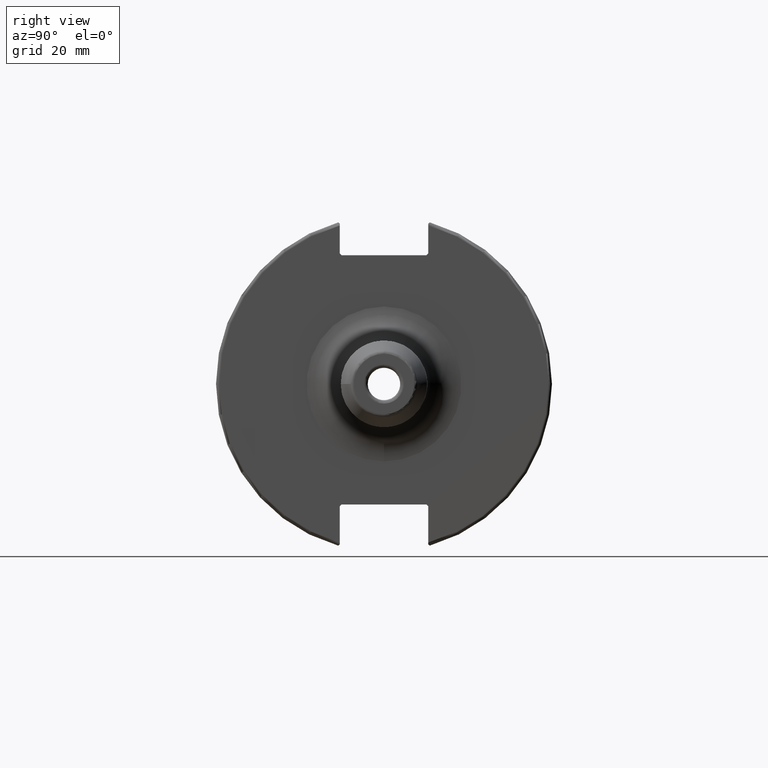
[diagram: clean part render]
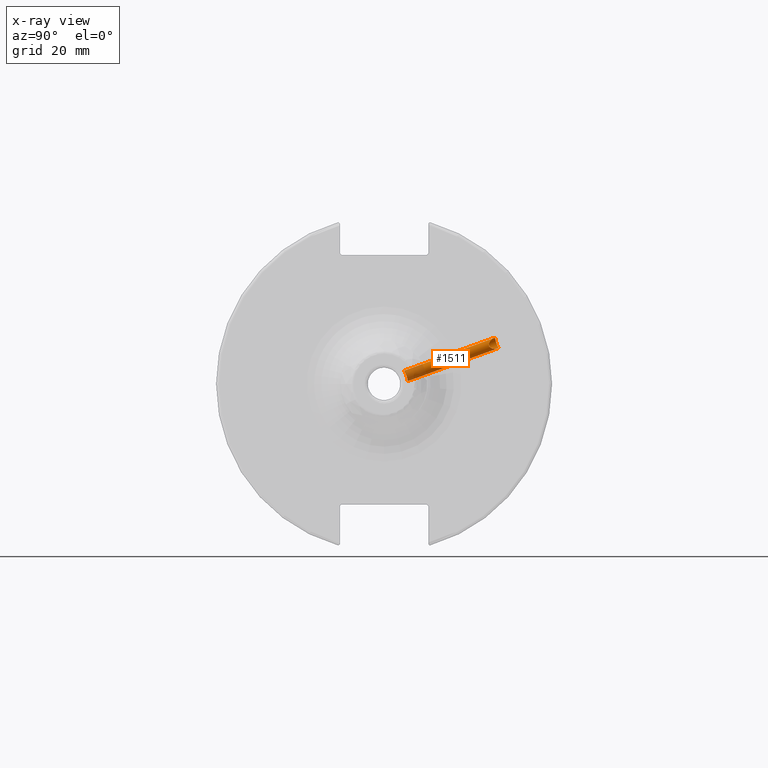
[diagram: x-ray — body ghosted, one internal face saturated and labeled with its STEP entity id]
A machine part, right view, then the same camera in x-ray: the body is ghosted and one INTERNAL B-rep face — a face not visible from any outside direction — is saturated and labeled: STEP entity #1511.
In plain terms, the highlighted cylindrical surface (bore or boss wall) has radius 1.621 mm, axis along (-0, 0.9397, 0.342).
Its self-contained STEP definition (entity closure, byte-faithful):
#216=FACE_OUTER_BOUND('',#312,.T.);
#312=EDGE_LOOP('',(#1144,#1145,#1146,#1147,#1148,#1149));
#413=LINE('',#2708,#506);
#506=VECTOR('',#1921,1.621);
#574=B_SPLINE_CURVE_WITH_KNOTS('',3,(#2326,#2327,#2328,#2329,#2330,#2331,
#2332,#2333,#2334,#2335,#2336,#2337,#2338,#2339,#2340,#2341,#2342,#2343,
#2344,#2345,#2346,#2347,#2348,#2349,#2350,#2351),.UNSPECIFIED.,.F.,.F.,
(4,2,2,2,2,2,2,2,2,2,2,2,4),(0.,0.061304281095889,0.122608562191778,0.183906587521476,
0.245204612851173,0.306502638180871,0.367800663510569,0.429104944606458,
0.490409225702346,0.551713506798235,0.613017787894124,0.674315813223822,
0.735613838553519),.UNSPECIFIED.);
#575=B_SPLINE_CURVE_WITH_KNOTS('',3,(#2352,#2353,#2354,#2355,#2356,#2357,
#2358,#2359,#2360,#2361),.UNSPECIFIED.,.F.,.F.,(4,2,2,2,4),(0.735613838553519,
0.796911863883217,0.858209889212914,0.919514170308803,0.980818451404692),
 .UNSPECIFIED.);
#585=B_SPLINE_CURVE_WITH_KNOTS('',3,(#2664,#2665,#2666,#2667,#2668,#2669,
#2670,#2671,#2672,#2673,#2674,#2675,#2676,#2677,#2678,#2679,#2680,#2681,
#2682,#2683,#2684,#2685,#2686,#2687,#2688,#2689,#2690,#2691,#2692,#2693,
#2694,#2695),.UNSPECIFIED.,.F.,.F.,(4,2,2,2,2,2,2,2,2,2,2,2,2,2,2,4),(0.,
0.0884839677067705,0.176967935413541,0.264588928472714,0.292934680202631,
0.321280431932548,0.349626183662465,0.377971935392382,0.465592928451555,
0.554076896158326,0.642560863865096,0.674019283137882,0.705477702410669,
0.768394540956241,0.83753256912227,0.892424435682429),.UNSPECIFIED.);
#586=B_SPLINE_CURVE_WITH_KNOTS('',3,(#2696,#2697,#2698,#2699,#2700,#2701,
#2702,#2703,#2704,#2705,#2706,#2707),.UNSPECIFIED.,.F.,.F.,(4,2,2,2,2,4),
(0.892424435682429,0.947316302242587,1.01645433040862,1.07937116895419,
1.11082958822697,1.14228800749976),.UNSPECIFIED.);
#620=VERTEX_POINT('',#2324);
#621=VERTEX_POINT('',#2325);
#678=VERTEX_POINT('',#2662);
#679=VERTEX_POINT('',#2663);
#778=EDGE_CURVE('',#620,#621,#574,.T.);
#779=EDGE_CURVE('',#621,#620,#575,.T.);
#854=EDGE_CURVE('',#678,#679,#585,.T.);
#855=EDGE_CURVE('',#679,#678,#586,.T.);
#856=EDGE_CURVE('',#679,#621,#413,.T.);
#1144=ORIENTED_EDGE('',*,*,#854,.F.);
#1145=ORIENTED_EDGE('',*,*,#855,.F.);
#1146=ORIENTED_EDGE('',*,*,#856,.T.);
#1147=ORIENTED_EDGE('',*,*,#779,.T.);
#1148=ORIENTED_EDGE('',*,*,#778,.T.);
#1149=ORIENTED_EDGE('',*,*,#856,.F.);
#1469=CYLINDRICAL_SURFACE('',#1657,1.621);
#1511=ADVANCED_FACE('',(#216),#1469,.F.);
#1657=AXIS2_PLACEMENT_3D('',#2661,#1919,#1920);
#1919=DIRECTION('center_axis',(-1.32999192572579E-16,0.939692620785908,
0.342020143325669));
#1920=DIRECTION('ref_axis',(1.,1.41534784492982E-16,0.));
#1921=DIRECTION('',(1.32999192572579E-16,-0.939692620785908,-0.342020143325669));
#2324=CARTESIAN_POINT('',(11.1341,6.95346328967804,0.805821493322101));
#2325=CARTESIAN_POINT('',(9.5131,6.57784834550136,2.39414100327968));
#2326=CARTESIAN_POINT('Ctrl Pts',(11.1341,6.95346328967804,0.805821493322101));
#2327=CARTESIAN_POINT('Ctrl Pts',(11.338447603653,6.95346328967804,0.8058214933221));
#2328=CARTESIAN_POINT('Ctrl Pts',(11.5558858559344,6.9489856151589,0.847813764950009));
#2329=CARTESIAN_POINT('Ctrl Pts',(11.955033227138,6.92641118197014,1.01588248772159));
#2330=CARTESIAN_POINT('Ctrl Pts',(12.1368096133175,6.9077940068322,1.14172879648063));
#2331=CARTESIAN_POINT('Ctrl Pts',(12.4238159268308,6.85439814147701,1.42772003025958));
#2332=CARTESIAN_POINT('Ctrl Pts',(12.5484516639509,6.81594760192237,1.60717410893748));
#2333=CARTESIAN_POINT('Ctrl Pts',(12.7141138416802,6.71285124761748,1.9944368762592));
#2334=CARTESIAN_POINT('Ctrl Pts',(12.7551,6.64773221019751,2.2021366630428));
#2335=CARTESIAN_POINT('Ctrl Pts',(12.7551,6.50796448080521,2.58614534351656));
#2336=CARTESIAN_POINT('Ctrl Pts',(12.7141138416802,6.42434170808301,2.78711032142741));
#2337=CARTESIAN_POINT('Ctrl Pts',(12.5484516639509,6.25439038887677,3.15003987151213));
#2338=CARTESIAN_POINT('Ctrl Pts',(12.4238159268308,6.16849435275567,3.31222520168986));
#2339=CARTESIAN_POINT('Ctrl Pts',(12.1368096133175,6.02556633714446,3.56562939776576));
#2340=CARTESIAN_POINT('Ctrl Pts',(11.955033227138,5.95893547271035,3.67400015278369));
#2341=CARTESIAN_POINT('Ctrl Pts',(11.5558858559344,5.86819599923775,3.8172588298744));
#2342=CARTESIAN_POINT('Ctrl Pts',(11.338447603653,5.84463398501622,3.85230496991002));
#2343=CARTESIAN_POINT('Ctrl Pts',(10.929752396347,5.84463398501622,3.85230496991001));
#2344=CARTESIAN_POINT('Ctrl Pts',(10.7123141440656,5.86819599923775,3.8172588298744));
#2345=CARTESIAN_POINT('Ctrl Pts',(10.313166772862,5.95893547271036,3.67400015278369));
#2346=CARTESIAN_POINT('Ctrl Pts',(10.1313903866825,6.02556633714446,3.56562939776576));
#2347=CARTESIAN_POINT('Ctrl Pts',(9.84438407316922,6.16849435275567,3.31222520168986));
#2348=CARTESIAN_POINT('Ctrl Pts',(9.71974833604907,6.25439038887677,3.15003987151212));
#2349=CARTESIAN_POINT('Ctrl Pts',(9.55408615831982,6.42434170808301,2.7871103214274));
#2350=CARTESIAN_POINT('Ctrl Pts',(9.5131,6.50796448080521,2.58614534351656));
#2351=CARTESIAN_POINT('Ctrl Pts',(9.5131,6.57784834550136,2.39414100327968));
#2352=CARTESIAN_POINT('Ctrl Pts',(9.5131,6.57784834550136,2.39414100327968));
#2353=CARTESIAN_POINT('Ctrl Pts',(9.5131,6.6477322101975,2.2021366630428));
#2354=CARTESIAN_POINT('Ctrl Pts',(9.55408615831982,6.71285124761748,1.9944368762592));
#2355=CARTESIAN_POINT('Ctrl Pts',(9.71974833604907,6.81594760192237,1.60717410893749));
#2356=CARTESIAN_POINT('Ctrl Pts',(9.84438407316922,6.85439814147701,1.42772003025958));
#2357=CARTESIAN_POINT('Ctrl Pts',(10.1313903866825,6.9077940068322,1.14172879648064));
#2358=CARTESIAN_POINT('Ctrl Pts',(10.313166772862,6.92641118197014,1.0158824877216));
#2359=CARTESIAN_POINT('Ctrl Pts',(10.7123141440656,6.9489856151589,0.84781376495001));
#2360=CARTESIAN_POINT('Ctrl Pts',(10.929752396347,6.95346328967804,0.805821493322101));
#2361=CARTESIAN_POINT('Ctrl Pts',(11.1341,6.95346328967804,0.805821493322101));
#2661=CARTESIAN_POINT('Origin',(11.1341,21.5598376450015,7.84713915839248));
#2662=CARTESIAN_POINT('',(11.1341,33.313335016979,10.4000301811349));
#2663=CARTESIAN_POINT('',(9.5131,32.9255829555454,11.9839321416811));
#2664=CARTESIAN_POINT('Ctrl Pts',(11.1341,33.313335016979,10.4000301811349));
#2665=CARTESIAN_POINT('Ctrl Pts',(11.3757060767793,33.1543630852081,10.3421691298865));
#2666=CARTESIAN_POINT('Ctrl Pts',(11.5864820284691,32.9218505690671,10.3113735751054));
#2667=CARTESIAN_POINT('Ctrl Pts',(11.9681018879898,32.4180819286834,10.3035661598069));
#2668=CARTESIAN_POINT('Ctrl Pts',(12.1379400889368,32.1460311578073,10.3288989118134));
#2669=CARTESIAN_POINT('Ctrl Pts',(12.4213114787667,31.6460404618918,10.4484747155027));
#2670=CARTESIAN_POINT('Ctrl Pts',(12.5695213105869,31.350391478186,10.5645115156154));
#2671=CARTESIAN_POINT('Ctrl Pts',(12.6851350131118,31.0645202123338,10.797613403218));
#2672=CARTESIAN_POINT('Ctrl Pts',(12.7111094113745,30.9933030092018,10.8682275910532));
#2673=CARTESIAN_POINT('Ctrl Pts',(12.7461906022264,30.8732584943377,11.0286552191396));
#2674=CARTESIAN_POINT('Ctrl Pts',(12.7551,30.8247283204383,11.1187338581983));
#2675=CARTESIAN_POINT('Ctrl Pts',(12.7551,30.760096199976,11.2963091497399));
#2676=CARTESIAN_POINT('Ctrl Pts',(12.7461906022264,30.7393710369309,11.396507985113));
#2677=CARTESIAN_POINT('Ctrl Pts',(12.7111094113745,30.7282095788841,11.5965658048968));
#2678=CARTESIAN_POINT('Ctrl Pts',(12.6851350131118,30.7373751965893,11.6964369468632));
#2679=CARTESIAN_POINT('Ctrl Pts',(12.5695213105869,30.8065302860973,12.0587578601968));
#2680=CARTESIAN_POINT('Ctrl Pts',(12.4213114787667,30.9584235297988,12.3376867096629));
#2681=CARTESIAN_POINT('Ctrl Pts',(12.1379400889368,31.2645767789862,12.7506749139037));
#2682=CARTESIAN_POINT('Ctrl Pts',(11.9681018879898,31.4566961811531,12.944951792532));
#2683=CARTESIAN_POINT('Ctrl Pts',(11.5864820284691,31.8476238585542,13.2627872056147));
#2684=CARTESIAN_POINT('Ctrl Pts',(11.3757060767793,32.0455337805463,13.3886526064744));
#2685=CARTESIAN_POINT('Ctrl Pts',(11.0482025718087,32.2610244898072,13.4670848104063));
#2686=CARTESIAN_POINT('Ctrl Pts',(10.9546197272613,32.3146654550416,13.4792369583723));
#2687=CARTESIAN_POINT('Ctrl Pts',(10.7595056152646,32.4073631346194,13.4769601376887));
#2688=CARTESIAN_POINT('Ctrl Pts',(10.6579468329885,32.4463573573083,13.4623489695152));
#2689=CARTESIAN_POINT('Ctrl Pts',(10.3586687330207,32.5415491913672,13.3759423222779));
#2690=CARTESIAN_POINT('Ctrl Pts',(10.1659386735598,32.5780714501619,13.2587921009005));
#2691=CARTESIAN_POINT('Ctrl Pts',(9.84844561894806,32.6511585393986,12.9627897133043));
#2692=CARTESIAN_POINT('Ctrl Pts',(9.69712806088231,32.6986445558393,12.7362303482748));
#2693=CARTESIAN_POINT('Ctrl Pts',(9.55236126545399,32.799004604605,12.3622019181971));
#2694=CARTESIAN_POINT('Ctrl Pts',(9.5131,32.8630025419843,12.1558704148403));
#2695=CARTESIAN_POINT('Ctrl Pts',(9.5131,32.9255829555454,11.9839321416811));
#2696=CARTESIAN_POINT('Ctrl Pts',(9.5131,32.9255829555454,11.9839321416811));
#2697=CARTESIAN_POINT('Ctrl Pts',(9.5131,32.9881633691064,11.811993868522));
#2698=CARTESIAN_POINT('Ctrl Pts',(9.55236126545399,33.0717654386517,11.6127976857422));
#2699=CARTESIAN_POINT('Ctrl Pts',(9.69712806088231,33.235306021508,11.2617650894585));
#2700=CARTESIAN_POINT('Ctrl Pts',(9.84844561894806,33.3445591751872,11.0576871238396));
#2701=CARTESIAN_POINT('Ctrl Pts',(10.1659386735598,33.4788378837982,10.7839566642822));
#2702=CARTESIAN_POINT('Ctrl Pts',(10.3586687330207,33.5261629211717,10.6707383327549));
#2703=CARTESIAN_POINT('Ctrl Pts',(10.6579468329885,33.5087828678993,10.5433588693138));
#2704=CARTESIAN_POINT('Ctrl Pts',(10.7595056152646,33.4883034381597,10.5071010619333));
#2705=CARTESIAN_POINT('Ctrl Pts',(10.9546197272613,33.418756407954,10.4457719962213));
#2706=CARTESIAN_POINT('Ctrl Pts',(11.0482025718087,33.369853794469,10.4206013338184));
#2707=CARTESIAN_POINT('Ctrl Pts',(11.1341,33.313335016979,10.4000301811349));
#2708=CARTESIAN_POINT('',(9.5131,21.5598376450015,7.84713915839248));